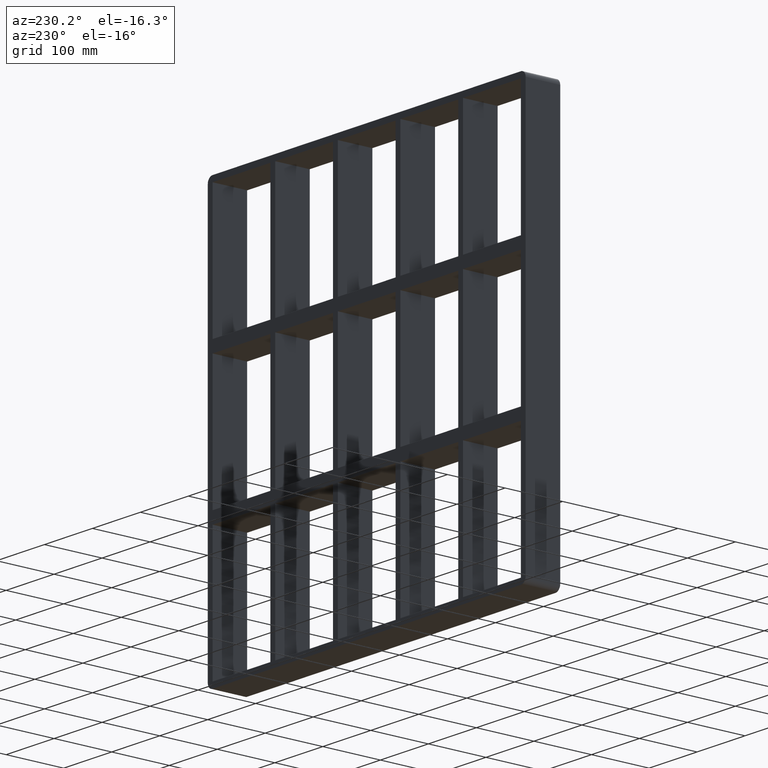
[diagram: clean part render]
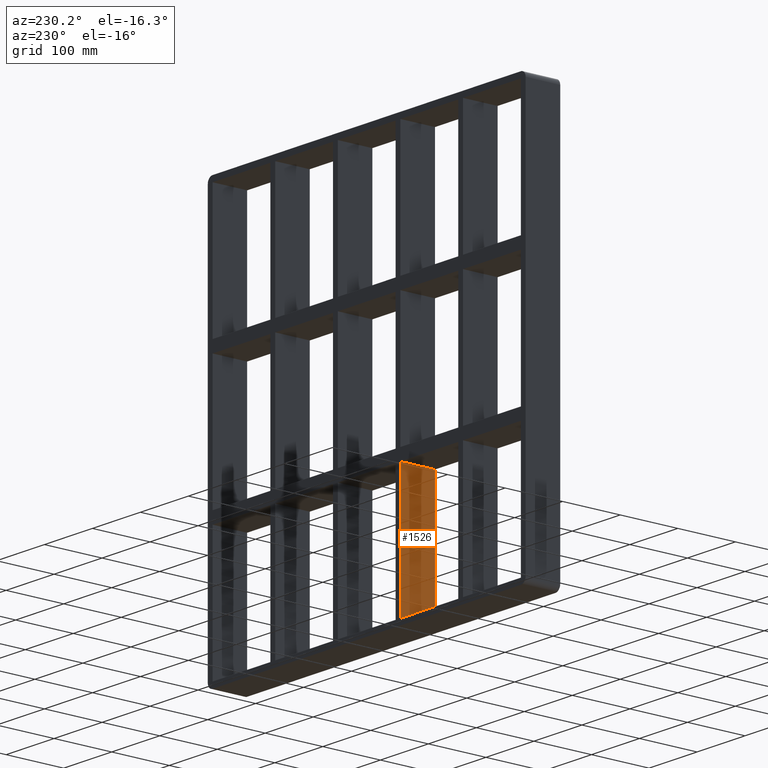
[diagram: same view with one face highlighted and labeled with its STEP entity id]
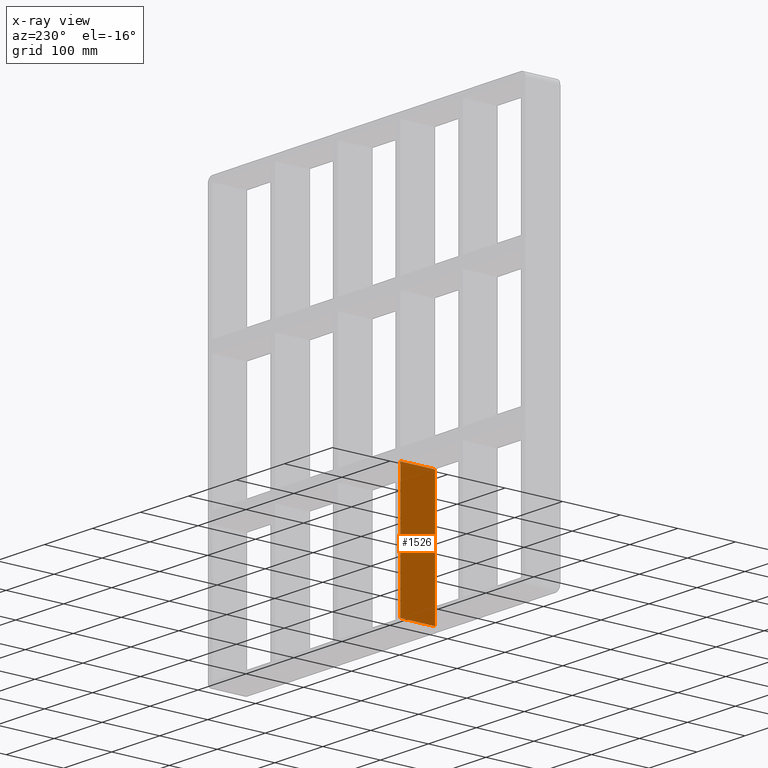
[diagram: x-ray of the same camera — body ghosted, the highlighted face saturated]
A machine part, auxiliary view. The second image highlights one B-rep face of the part: STEP entity #1526.
The next image is the same camera in x-ray: the body ghosted, the highlighted face saturated — about 0% of this face is hidden behind the body in this view.
In plain terms, the highlighted planar face has unit normal (-1, 0, 0).
Its self-contained STEP definition (entity closure, byte-faithful):
#1104=CARTESIAN_POINT('',(-70.250000000001307,57.0,-346.99999999999994));
#1105=VERTEX_POINT('',#1104);
#1106=CARTESIAN_POINT('',(-70.250000000001322,57.0,-129.00000000000941));
#1107=VERTEX_POINT('',#1106);
#1108=CARTESIAN_POINT('',(-70.250000000001307,57.0,-346.99999999999994));
#1109=DIRECTION('',(0.0,0.0,1.0));
#1110=VECTOR('',#1109,217.99999999999056);
#1111=LINE('',#1108,#1110);
#1112=EDGE_CURVE('',#1105,#1107,#1111,.T.);
#1496=CARTESIAN_POINT('',(-70.250000000001307,-3.0,-346.99999999999994));
#1497=DIRECTION('',(-1.0,0.0,0.0));
#1498=DIRECTION('',(0.0,0.0,1.0));
#1499=AXIS2_PLACEMENT_3D('',#1496,#1497,#1498);
#1500=PLANE('',#1499);
#1501=CARTESIAN_POINT('',(-70.250000000001322,-3.0,-129.00000000000941));
#1502=VERTEX_POINT('',#1501);
#1503=CARTESIAN_POINT('',(-70.250000000001322,57.0,-129.00000000000938));
#1504=DIRECTION('',(0.0,-1.0,0.0));
#1505=VECTOR('',#1504,60.0);
#1506=LINE('',#1503,#1505);
#1507=EDGE_CURVE('',#1107,#1502,#1506,.T.);
#1508=ORIENTED_EDGE('',*,*,#1507,.F.);
#1509=ORIENTED_EDGE('',*,*,#1112,.F.);
#1510=CARTESIAN_POINT('',(-70.250000000001307,-3.0,-346.99999999999994));
#1511=VERTEX_POINT('',#1510);
#1512=CARTESIAN_POINT('',(-70.250000000001322,-3.0,-346.99999999999994));
#1513=DIRECTION('',(0.0,1.0,0.0));
#1514=VECTOR('',#1513,60.000000000000007);
#1515=LINE('',#1512,#1514);
#1516=EDGE_CURVE('',#1511,#1105,#1515,.T.);
#1517=ORIENTED_EDGE('',*,*,#1516,.F.);
#1518=CARTESIAN_POINT('',(-70.250000000001307,-3.0,-346.99999999999994));
#1519=DIRECTION('',(0.0,0.0,1.0));
#1520=VECTOR('',#1519,217.99999999999056);
#1521=LINE('',#1518,#1520);
#1522=EDGE_CURVE('',#1511,#1502,#1521,.T.);
#1523=ORIENTED_EDGE('',*,*,#1522,.T.);
#1524=EDGE_LOOP('',(#1508,#1509,#1517,#1523));
#1525=FACE_OUTER_BOUND('',#1524,.T.);
#1526=ADVANCED_FACE('',(#1525),#1500,.T.);